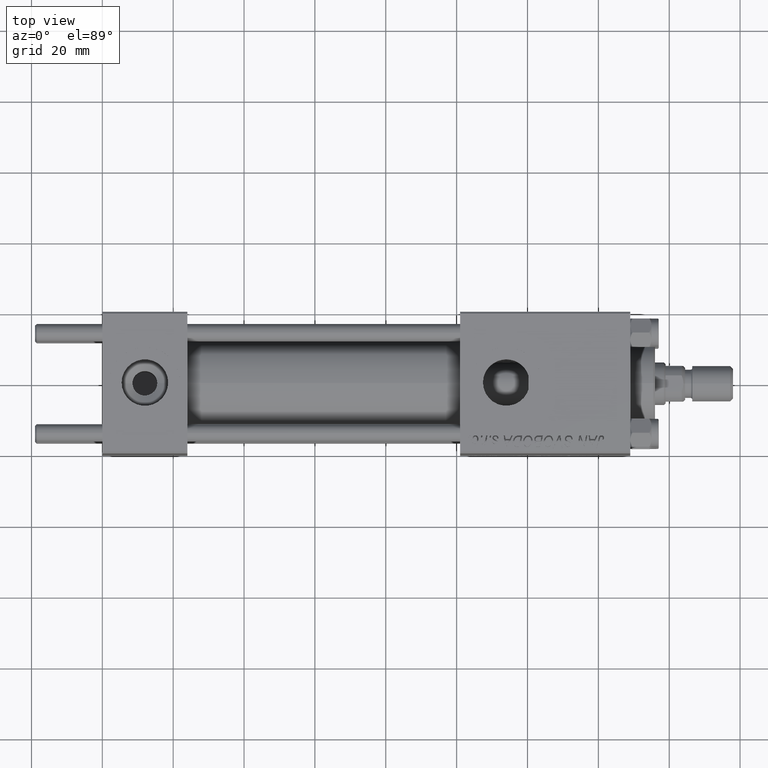
[diagram: clean part render]
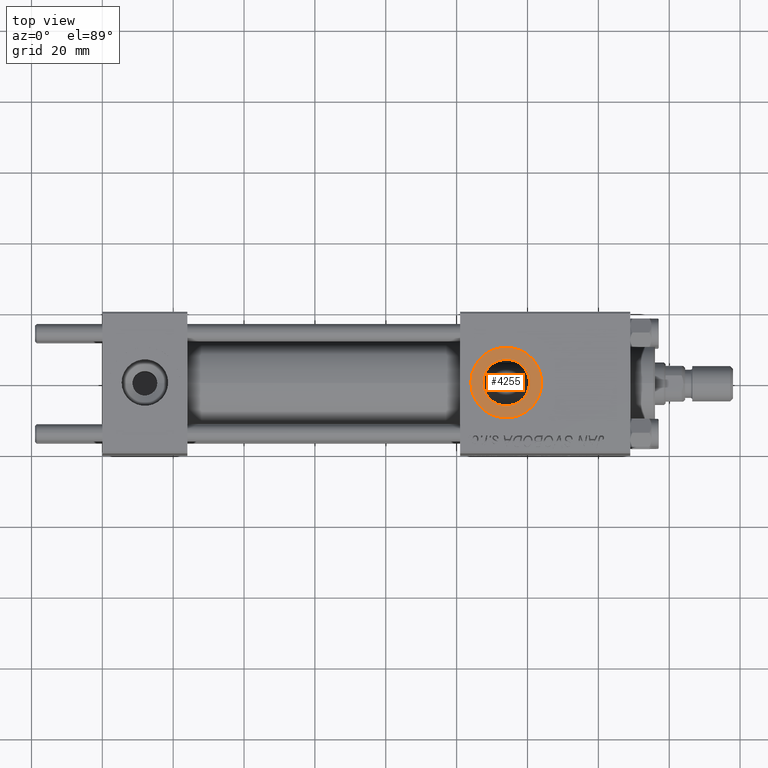
[diagram: same view with one face highlighted and labeled with its STEP entity id]
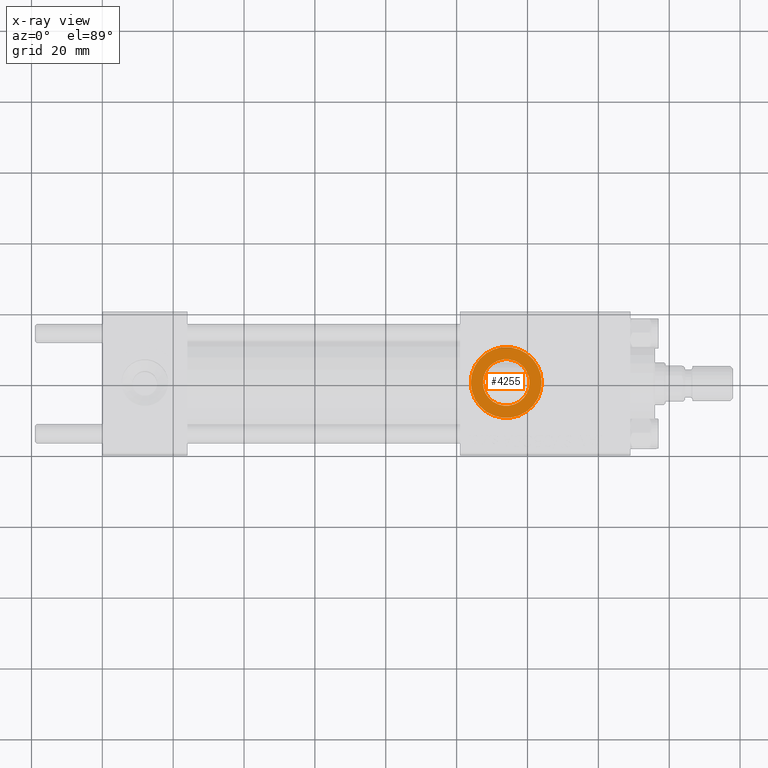
[diagram: x-ray of the same camera — body ghosted, the highlighted face saturated]
A machine part, top view. The second image highlights one B-rep face of the part: STEP entity #4255.
The next image is the same camera in x-ray: the body ghosted, the highlighted face saturated — about 0% of this face is hidden behind the body in this view.
In plain terms, the highlighted planar face has unit normal (0, 0, 1).
Its self-contained STEP definition (entity closure, byte-faithful):
#28 = ORIENTED_EDGE ( 'NONE', *, *, #44226, .T. ) ;
#921 = EDGE_CURVE ( 'NONE', #23399, #30618, #7415, .T. ) ;
#976 = DIRECTION ( 'NONE',  ( 1.000000000000000000, 0.000000000000000000, 0.000000000000000000 ) ) ;
#1758 = CARTESIAN_POINT ( 'NONE',  ( 114.0000000000000000, -1.734723475976806897E-15, 19.80000000000000071 ) ) ;
#2019 = DIRECTION ( 'NONE',  ( 1.000000000000000000, 0.000000000000000000, 0.000000000000000000 ) ) ;
#2528 = EDGE_CURVE ( 'NONE', #4593, #17627, #27731, .T. ) ;
#3346 = AXIS2_PLACEMENT_3D ( 'NONE', #19499, #34557, #11565 ) ;
#3968 = CARTESIAN_POINT ( 'NONE',  ( 124.0000000000000142, -1.734723475976806897E-15, 19.80000000000000071 ) ) ;
#4255 = ADVANCED_FACE ( 'NONE', ( #6552, #7352 ), #39306, .T. ) ;
#4593 = VERTEX_POINT ( 'NONE', #22856 ) ;
#4951 = AXIS2_PLACEMENT_3D ( 'NONE', #1758, #38195, #2019 ) ;
#5906 = DIRECTION ( 'NONE',  ( -0.000000000000000000, -0.000000000000000000, -1.000000000000000000 ) ) ;
#6552 = FACE_BOUND ( 'NONE', #42999, .T. ) ;
#6695 = DIRECTION ( 'NONE',  ( 1.000000000000000000, 0.000000000000000000, 0.000000000000000000 ) ) ;
#7352 = FACE_OUTER_BOUND ( 'NONE', #23954, .T. ) ;
#7415 = CIRCLE ( 'NONE', #22582, 6.580000000000002736 ) ;
#9261 = AXIS2_PLACEMENT_3D ( 'NONE', #12991, #48224, #9549 ) ;
#9549 = DIRECTION ( 'NONE',  ( 1.000000000000000000, 0.000000000000000000, 0.000000000000000000 ) ) ;
#11565 = DIRECTION ( 'NONE',  ( 1.000000000000000000, 0.000000000000000000, -0.000000000000000000 ) ) ;
#12991 = CARTESIAN_POINT ( 'NONE',  ( 114.0000000000000000, -1.734723475976806897E-15, 19.80000000000000071 ) ) ;
#13117 = CARTESIAN_POINT ( 'NONE',  ( 114.0000000000000000, -1.734723475976806897E-15, 19.80000000000000071 ) ) ;
#17609 = EDGE_CURVE ( 'NONE', #30618, #23399, #28960, .T. ) ;
#17627 = VERTEX_POINT ( 'NONE', #3968 ) ;
#19499 = CARTESIAN_POINT ( 'NONE',  ( 114.0000000000000000, -1.734723475976806897E-15, 19.80000000000000071 ) ) ;
#22582 = AXIS2_PLACEMENT_3D ( 'NONE', #37857, #5906, #6695 ) ;
#22856 = CARTESIAN_POINT ( 'NONE',  ( 104.0000000000000000, -5.100766768294525560E-16, 19.80000000000000071 ) ) ;
#23399 = VERTEX_POINT ( 'NONE', #39172 ) ;
#23784 = DIRECTION ( 'NONE',  ( -0.000000000000000000, -0.000000000000000000, -1.000000000000000000 ) ) ;
#23954 = EDGE_LOOP ( 'NONE', ( #28, #51789 ) ) ;
#27731 = CIRCLE ( 'NONE', #4951, 10.00000000000000888 ) ;
#27926 = ORIENTED_EDGE ( 'NONE', *, *, #921, .T. ) ;
#28960 = CIRCLE ( 'NONE', #34882, 6.580000000000002736 ) ;
#30618 = VERTEX_POINT ( 'NONE', #47112 ) ;
#32610 = ORIENTED_EDGE ( 'NONE', *, *, #17609, .T. ) ;
#34557 = DIRECTION ( 'NONE',  ( 0.000000000000000000, 0.000000000000000000, 1.000000000000000000 ) ) ;
#34882 = AXIS2_PLACEMENT_3D ( 'NONE', #13117, #23784, #976 ) ;
#37857 = CARTESIAN_POINT ( 'NONE',  ( 114.0000000000000000, -1.734723475976806897E-15, 19.80000000000000071 ) ) ;
#38195 = DIRECTION ( 'NONE',  ( 0.000000000000000000, 0.000000000000000000, 1.000000000000000000 ) ) ;
#39172 = CARTESIAN_POINT ( 'NONE',  ( 107.4200000000000017, -1.734723475976806897E-15, 19.80000000000000071 ) ) ;
#39306 = PLANE ( 'NONE',  #3346 ) ;
#42999 = EDGE_LOOP ( 'NONE', ( #27926, #32610 ) ) ;
#44226 = EDGE_CURVE ( 'NONE', #17627, #4593, #50610, .T. ) ;
#47112 = CARTESIAN_POINT ( 'NONE',  ( 120.5800000000000125, -9.289058821378482497E-16, 19.80000000000000071 ) ) ;
#48224 = DIRECTION ( 'NONE',  ( 0.000000000000000000, 0.000000000000000000, 1.000000000000000000 ) ) ;
#50610 = CIRCLE ( 'NONE', #9261, 10.00000000000000888 ) ;
#51789 = ORIENTED_EDGE ( 'NONE', *, *, #2528, .T. ) ;